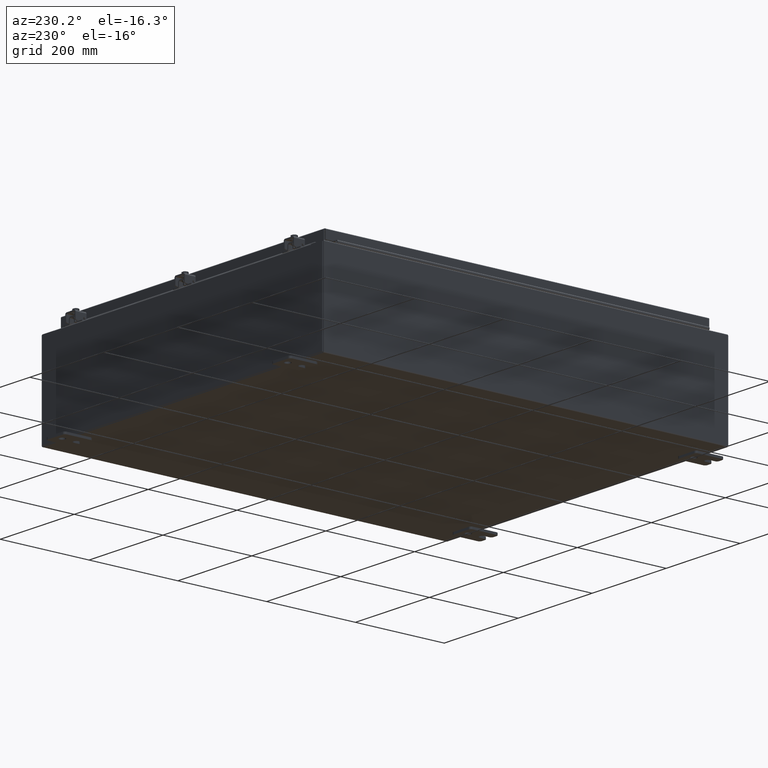
[diagram: clean part render]
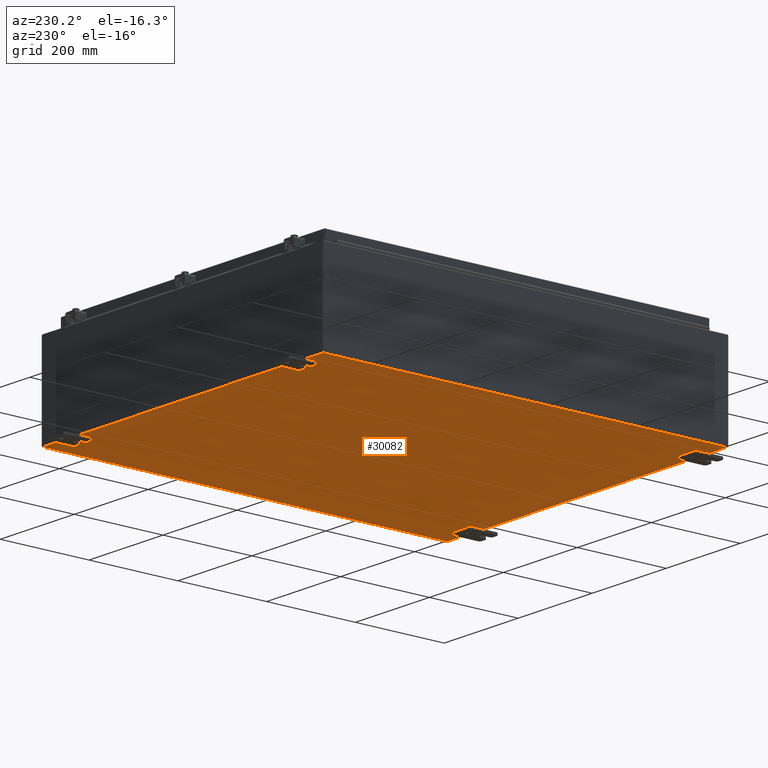
[diagram: same view with one face highlighted and labeled with its STEP entity id]
A machine part, auxiliary view. The second image highlights one B-rep face of the part: STEP entity #30082.
In plain terms, the highlighted planar face has unit normal (0, 0, -1).
Its self-contained STEP definition (entity closure, byte-faithful):
#110 = EDGE_CURVE ( 'NONE', #42901, #11175, #9878, .T. ) ;
#136 = CARTESIAN_POINT ( 'NONE',  ( 14.91229999999999800, 17.92530000000000000, -0.07470000000000251400 ) ) ;
#2229 = PLANE ( 'NONE',  #9723 ) ;
#2737 = CARTESIAN_POINT ( 'NONE',  ( -14.91230000000000200, 17.92530000000000000, -0.07470000000000000300 ) ) ;
#3693 = ORIENTED_EDGE ( 'NONE', *, *, #35222, .F. ) ;
#4172 = DIRECTION ( 'NONE',  ( -0.0000000000000000000, 1.000000000000000000, -0.0000000000000000000 ) ) ;
#4970 = ORIENTED_EDGE ( 'NONE', *, *, #31691, .F. ) ;
#6980 = DIRECTION ( 'NONE',  ( -0.0000000000000000000, -1.000000000000000000, 8.208677865577646300E-017 ) ) ;
#8820 = VECTOR ( 'NONE', #6980, 39.37007874015748100 ) ;
#8958 = LINE ( 'NONE', #13760, #42384 ) ;
#9723 = AXIS2_PLACEMENT_3D ( 'NONE', #42203, #35454, #25533 ) ;
#9878 = LINE ( 'NONE', #136, #8820 ) ;
#11175 = VERTEX_POINT ( 'NONE', #39363 ) ;
#12833 = LINE ( 'NONE', #37986, #30563 ) ;
#13760 = CARTESIAN_POINT ( 'NONE',  ( -15.00000000000000400, 17.92530000000000000, -0.07470000000000000300 ) ) ;
#14630 = DIRECTION ( 'NONE',  ( 1.000000000000000000, 0.0000000000000000000, 0.0000000000000000000 ) ) ;
#17107 = DIRECTION ( 'NONE',  ( -1.000000000000000000, -0.0000000000000000000, -0.0000000000000000000 ) ) ;
#20002 = EDGE_LOOP ( 'NONE', ( #4970, #38752, #3693, #36262 ) ) ;
#20295 = FACE_OUTER_BOUND ( 'NONE', #20002, .T. ) ;
#22939 = LINE ( 'NONE', #34206, #30775 ) ;
#23376 = VERTEX_POINT ( 'NONE', #2737 ) ;
#25533 = DIRECTION ( 'NONE',  ( -1.000000000000000000, 0.0000000000000000000, -0.0000000000000000000 ) ) ;
#25800 = CARTESIAN_POINT ( 'NONE',  ( 14.91229999999999800, 17.92530000000000000, -0.07470000000000251400 ) ) ;
#29282 = EDGE_CURVE ( 'NONE', #42298, #23376, #22939, .T. ) ;
#30082 = ADVANCED_FACE ( 'NONE', ( #20295 ), #2229, .T. ) ;
#30563 = VECTOR ( 'NONE', #14630, 39.37007874015748100 ) ;
#30775 = VECTOR ( 'NONE', #4172, 39.37007874015748100 ) ;
#31691 = EDGE_CURVE ( 'NONE', #42298, #11175, #12833, .T. ) ;
#32696 = CARTESIAN_POINT ( 'NONE',  ( -14.91230000000000200, -17.92530000000000000, -0.07469999999999994700 ) ) ;
#34206 = CARTESIAN_POINT ( 'NONE',  ( -14.91230000000000200, -17.92530000000000000, -0.07469999999999994700 ) ) ;
#35222 = EDGE_CURVE ( 'NONE', #42901, #23376, #8958, .T. ) ;
#35454 = DIRECTION ( 'NONE',  ( 0.0000000000000000000, 0.0000000000000000000, -1.000000000000000000 ) ) ;
#36262 = ORIENTED_EDGE ( 'NONE', *, *, #110, .T. ) ;
#37986 = CARTESIAN_POINT ( 'NONE',  ( -15.00000000000000400, -17.92530000000000000, -0.07470000000000000300 ) ) ;
#38752 = ORIENTED_EDGE ( 'NONE', *, *, #29282, .T. ) ;
#39363 = CARTESIAN_POINT ( 'NONE',  ( 14.91229999999999800, -17.92530000000000000, -0.07470000000000000300 ) ) ;
#42203 = CARTESIAN_POINT ( 'NONE',  ( 0.0000000000000000000, 0.0000000000000000000, -0.07470000000000000300 ) ) ;
#42298 = VERTEX_POINT ( 'NONE', #32696 ) ;
#42384 = VECTOR ( 'NONE', #17107, 39.37007874015748100 ) ;
#42901 = VERTEX_POINT ( 'NONE', #25800 ) ;